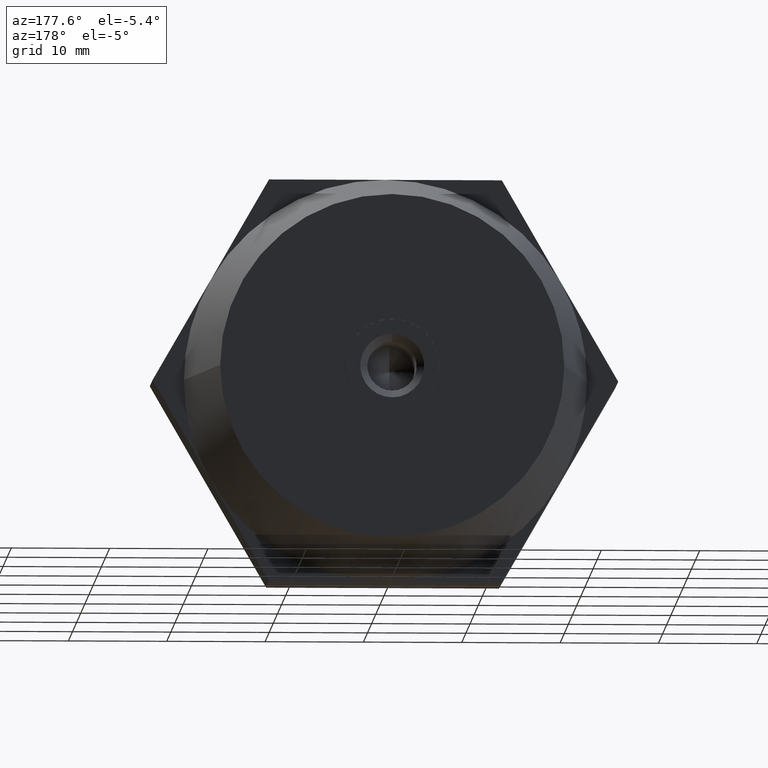
[diagram: clean part render]
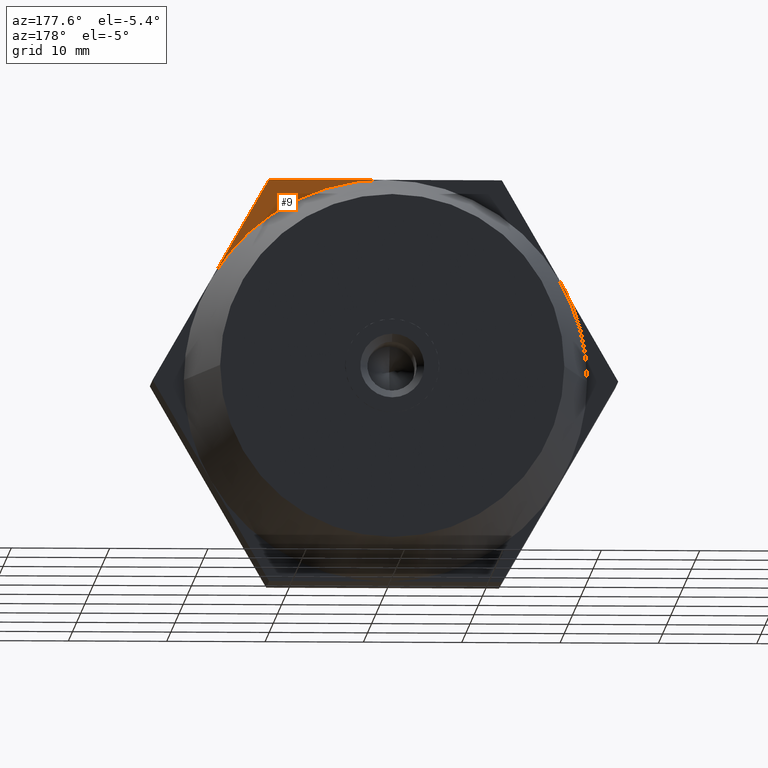
[diagram: same view with one face highlighted and labeled with its STEP entity id]
A machine part, auxiliary view. The second image highlights one B-rep face of the part: STEP entity #9.
In plain terms, the highlighted planar face has unit normal (0, 1, 0).
Its self-contained STEP definition (entity closure, byte-faithful):
#9 = ADVANCED_FACE ( 'NONE', ( #1804 ), #57, .T. ) ;
#35 = DIRECTION ( 'NONE',  ( 0.0000000000000000000, 1.000000000000000000, 0.0000000000000000000 ) ) ;
#57 = PLANE ( 'NONE',  #1987 ) ;
#81 = CARTESIAN_POINT ( 'NONE',  ( 11.83568051838732100, 3.500000000000000000, 20.50000000000000000 ) ) ;
#88 = AXIS2_PLACEMENT_3D ( 'NONE', #2081, #576, #1140 ) ;
#206 = CIRCLE ( 'NONE', #88, 20.50000000000000000 ) ;
#231 = ORIENTED_EDGE ( 'NONE', *, *, #819, .T. ) ;
#405 = VERTEX_POINT ( 'NONE', #3598 ) ;
#481 = VERTEX_POINT ( 'NONE', #2448 ) ;
#576 = DIRECTION ( 'NONE',  ( -1.224646799147352000E-016, 1.000000000000000000, 0.0000000000000000000 ) ) ;
#610 = ORIENTED_EDGE ( 'NONE', *, *, #1680, .F. ) ;
#819 = EDGE_CURVE ( 'NONE', #405, #3579, #2269, .T. ) ;
#839 = DIRECTION ( 'NONE',  ( 1.000000000000000000, 0.0000000000000000000, 1.465672779255763900E-016 ) ) ;
#1007 = VECTOR ( 'NONE', #839, 1000.000000000000000 ) ;
#1140 = DIRECTION ( 'NONE',  ( -1.000000000000000000, -1.269309860470834500E-016, 0.0000000000000000000 ) ) ;
#1355 = LINE ( 'NONE', #81, #1763 ) ;
#1504 = EDGE_LOOP ( 'NONE', ( #610, #231, #3333 ) ) ;
#1680 = EDGE_CURVE ( 'NONE', #405, #481, #206, .T. ) ;
#1763 = VECTOR ( 'NONE', #3664, 1000.000000000000000 ) ;
#1804 = FACE_OUTER_BOUND ( 'NONE', #1504, .T. ) ;
#1987 = AXIS2_PLACEMENT_3D ( 'NONE', #3622, #35, #3642 ) ;
#2081 = CARTESIAN_POINT ( 'NONE',  ( 2.020667218593134700E-015, 3.500000000000000000, 0.0000000000000000000 ) ) ;
#2269 = LINE ( 'NONE', #2652, #1007 ) ;
#2448 = CARTESIAN_POINT ( 'NONE',  ( 17.75352077758099900, 3.500000000000000000, 10.25000000000000000 ) ) ;
#2555 = EDGE_CURVE ( 'NONE', #3579, #481, #1355, .T. ) ;
#2652 = CARTESIAN_POINT ( 'NONE',  ( -11.83568051838732100, 3.500000000000000000, 20.50000000000000000 ) ) ;
#3333 = ORIENTED_EDGE ( 'NONE', *, *, #2555, .T. ) ;
#3579 = VERTEX_POINT ( 'NONE', #3617 ) ;
#3598 = CARTESIAN_POINT ( 'NONE',  ( -3.004629197474319600E-015, 3.500000000000000000, 20.50000000000000000 ) ) ;
#3617 = CARTESIAN_POINT ( 'NONE',  ( 11.83568051838732100, 3.500000000000000000, 20.50000000000000000 ) ) ;
#3622 = CARTESIAN_POINT ( 'NONE',  ( 0.0000000000000000000, 3.500000000000000000, 0.0000000000000000000 ) ) ;
#3642 = DIRECTION ( 'NONE',  ( 0.0000000000000000000, 0.0000000000000000000, 1.000000000000000000 ) ) ;
#3664 = DIRECTION ( 'NONE',  ( 0.4999999999999998900, 0.0000000000000000000, -0.8660254037844387100 ) ) ;